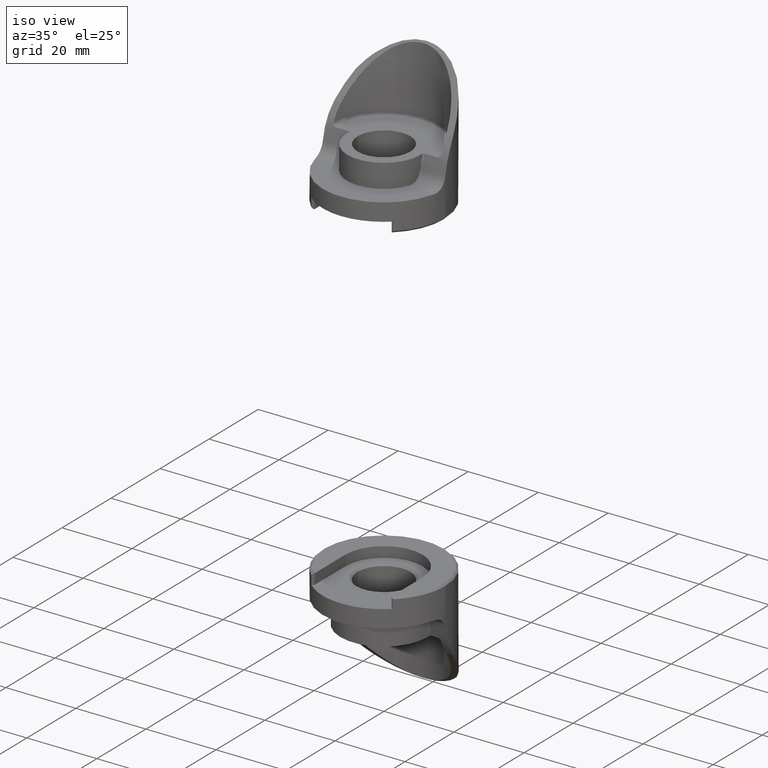
[diagram: clean part render]
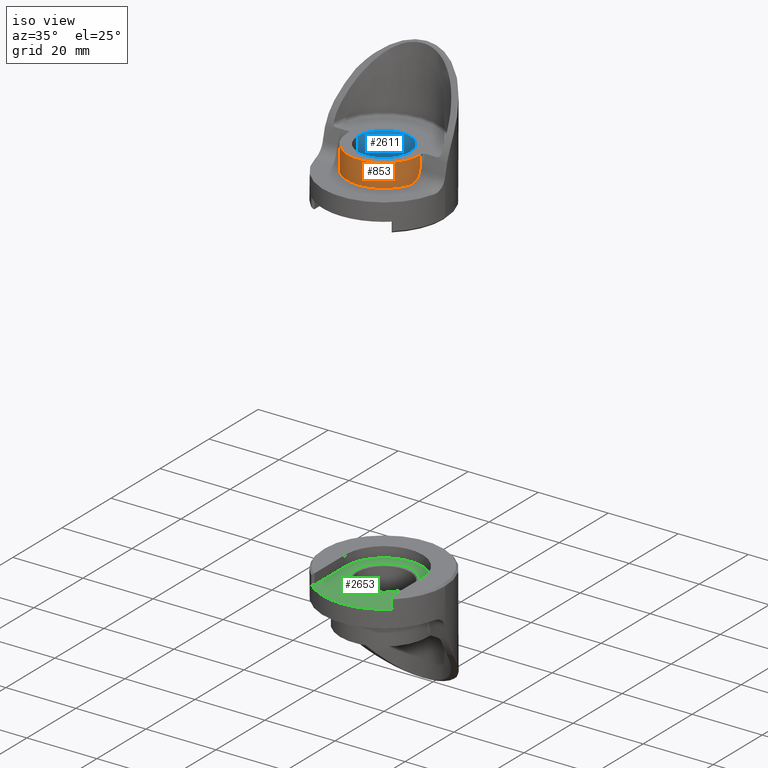
[diagram: same view with three faces highlighted in distinct colors, each labeled with its STEP entity id]
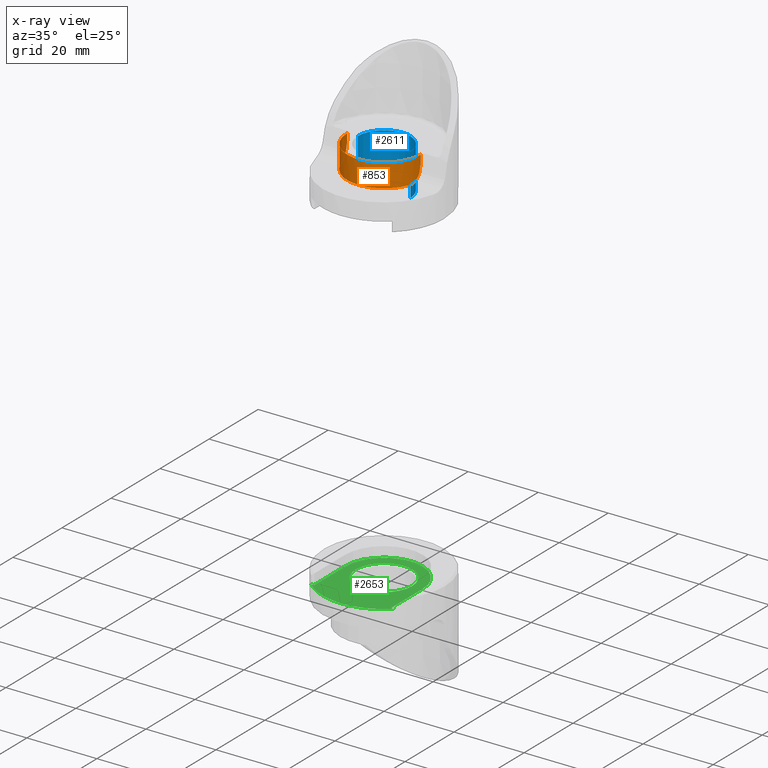
[diagram: x-ray of the same camera — body ghosted, the three highlighted faces saturated]
A machine part, iso view with three faces highlighted in distinct colors.
The next image is the same camera in x-ray (body ghosted, the three faces saturated) — at least one of them is partly hidden behind the body in this view.
Their STEP definitions:

[orange] entity #853 — the highlighted cylindrical surface (partial cylindrical patch) has radius 10.4902 mm, axis along (0, 0, 1).
#50 = DIRECTION ( 'NONE',  ( 1.000000000000000000, 0.0000000000000000000, 0.0000000000000000000 ) ) ;
#60 = DIRECTION ( 'NONE',  ( 0.0000000000000000000, 0.0000000000000000000, 1.000000000000000000 ) ) ;
#131 = CARTESIAN_POINT ( 'NONE',  ( -0.4130000000000000300, 5.057791280478569300E-017, 0.5899999999999999700 ) ) ;
#139 = VERTEX_POINT ( 'NONE', #179 ) ;
#141 = CARTESIAN_POINT ( 'NONE',  ( -0.4130000000000000300, -0.005826781412708131200, 0.4909225710475819700 ) ) ;
#154 = CARTESIAN_POINT ( 'NONE',  ( 0.3993263710594110400, -0.1056529272104528600, 0.3353939758456476200 ) ) ;
#179 = CARTESIAN_POINT ( 'NONE',  ( 0.0000000000000000000, -0.4130000000000000300, 0.3300000000000001800 ) ) ;
#197 = DIRECTION ( 'NONE',  ( 0.0000000000000000000, 0.0000000000000000000, 1.000000000000000000 ) ) ;
#213 = CARTESIAN_POINT ( 'NONE',  ( 0.3973214699686730100, -0.1129826487426935100, 0.3333771788843655800 ) ) ;
#215 = CARTESIAN_POINT ( 'NONE',  ( -0.3874878544324568100, -0.1429061323643290900, 0.3299999999999999600 ) ) ;
#224 = CARTESIAN_POINT ( 'NONE',  ( 0.4103198533190745600, -0.04723023390178410900, 0.3730357350703246100 ) ) ;
#232 = CARTESIAN_POINT ( 'NONE',  ( 0.4096665300905907300, -0.05270754598470167600, 0.3672645851385260000 ) ) ;
#311 = EDGE_CURVE ( 'NONE', #763, #139, #925, .T. ) ;
#323 = AXIS2_PLACEMENT_3D ( 'NONE', #363, #1905, #593 ) ;
#336 = CARTESIAN_POINT ( 'NONE',  ( -0.3972685364785689700, -0.1131666054838218500, 0.3333343270057818100 ) ) ;
#349 = CARTESIAN_POINT ( 'NONE',  ( 0.4113261526929359900, -0.03746829503769278500, 0.3853195972553889500 ) ) ;
#356 = CARTESIAN_POINT ( 'NONE',  ( 0.4028648309833255400, -0.09123606528337459300, 0.3408190321668037000 ) ) ;
#363 = CARTESIAN_POINT ( 'NONE',  ( 0.0000000000000000000, 0.0000000000000000000, 0.5899999999999999700 ) ) ;
#364 = CARTESIAN_POINT ( 'NONE',  ( -0.4128806757508197100, -0.01059386308442947100, 0.4673784015299072800 ) ) ;
#366 = CARTESIAN_POINT ( 'NONE',  ( 0.4128806757508213800, -0.01059386308437892200, 0.4673784015302325800 ) ) ;
#393 = EDGE_CURVE ( 'NONE', #1798, #932, #859, .T. ) ;
#401 = CARTESIAN_POINT ( 'NONE',  ( 0.4130000000000000300, 2.380073119156826500E-013, 0.5141958692772723400 ) ) ;
#442 = CARTESIAN_POINT ( 'NONE',  ( -0.4127103625916211900, -0.01551298114205573900, 0.4356854654216506000 ) ) ;
#447 = CARTESIAN_POINT ( 'NONE',  ( 0.4079689989661151600, -0.06454492360194004400, 0.3568561754940219900 ) ) ;
#517 = AXIS2_PLACEMENT_3D ( 'NONE', #1973, #663, #2190 ) ;
#518 = VERTEX_POINT ( 'NONE', #131 ) ;
#549 = ORIENTED_EDGE ( 'NONE', *, *, #1379, .T. ) ;
#561 = CARTESIAN_POINT ( 'NONE',  ( 0.4069357692341104000, -0.07083888025475620900, 0.3522580618666527600 ) ) ;
#565 = CARTESIAN_POINT ( 'NONE',  ( 0.3874878544324568100, -0.1429061323643290900, 0.3299999999999999600 ) ) ;
#571 = EDGE_CURVE ( 'NONE', #2399, #1798, #1130, .T. ) ;
#593 = DIRECTION ( 'NONE',  ( 1.000000000000000000, 0.0000000000000000000, 0.0000000000000000000 ) ) ;
#594 = CARTESIAN_POINT ( 'NONE',  ( -0.4130000000000000300, -8.294615100449116200E-016, 0.5141958692763185500 ) ) ;
#596 = CARTESIAN_POINT ( 'NONE',  ( 0.4127526842714976900, -0.01429061323643281500, 0.4435609478719307300 ) ) ;
#604 = CARTESIAN_POINT ( 'NONE',  ( 0.3927883479586157800, -0.1278543824940051300, 0.3306761581516196600 ) ) ;
#614 = CYLINDRICAL_SURFACE ( 'NONE', #1709, 0.4130000000000000300 ) ;
#616 = CARTESIAN_POINT ( 'NONE',  ( 0.4043943093681610100, -0.08414338826403917900, 0.3442518846642952900 ) ) ;
#663 = DIRECTION ( 'NONE',  ( 0.0000000000000000000, 2.532285782017398800E-016, 1.000000000000000000 ) ) ;
#715 = LINE ( 'NONE', #1352, #2520 ) ;
#726 = CARTESIAN_POINT ( 'NONE',  ( -0.4127526842714976900, -0.01429061323643281500, 0.4435609478719307300 ) ) ;
#738 = CARTESIAN_POINT ( 'NONE',  ( 0.0000000000000000000, 0.0000000000000000000, 0.3300000000000000200 ) ) ;
#753 = CIRCLE ( 'NONE', #517, 0.4130000000000000300 ) ;
#763 = VERTEX_POINT ( 'NONE', #215 ) ;
#791 = EDGE_CURVE ( 'NONE', #139, #1493, #753, .T. ) ;
#795 = CARTESIAN_POINT ( 'NONE',  ( 0.4116867158898785400, -0.03312794772482297000, 0.3918793623528836200 ) ) ;
#812 = CARTESIAN_POINT ( 'NONE',  ( 0.4130000000000033600, -0.005826781412577922000, 0.4909225710482253400 ) ) ;
#853 = ADVANCED_FACE ( 'NONE', ( #2355 ), #614, .T. ) ;
#859 = LINE ( 'NONE', #2495, #1952 ) ;
#882 = CARTESIAN_POINT ( 'NONE',  ( -0.4079600864244653000, -0.06460131094341294000, 0.3568125303097771700 ) ) ;
#925 = CIRCLE ( 'NONE', #1661, 0.4130000000000000300 ) ;
#932 = VERTEX_POINT ( 'NONE', #2766 ) ;
#949 = DIRECTION ( 'NONE',  ( 0.0000000000000000000, -1.000000000000000000, 3.307322026227921200E-016 ) ) ;
#979 = EDGE_CURVE ( 'NONE', #518, #932, #2149, .T. ) ;
#1073 = VERTEX_POINT ( 'NONE', #1496 ) ;
#1101 = ORIENTED_EDGE ( 'NONE', *, *, #571, .T. ) ;
#1106 = ORIENTED_EDGE ( 'NONE', *, *, #1778, .T. ) ;
#1130 = B_SPLINE_CURVE_WITH_KNOTS ( 'NONE', 3,
 ( #596, #366, #812, #2124 ),
 .UNSPECIFIED., .F., .F.,
 ( 4, 4 ),
 ( 2.168404344971008900E-019, 0.001828135297121841300 ),
 .UNSPECIFIED. ) ;
#1190 = CARTESIAN_POINT ( 'NONE',  ( 0.4127526842714976900, -0.01429061323643281500, 0.4435609478719307300 ) ) ;
#1202 = CARTESIAN_POINT ( 'NONE',  ( -0.4043612023738524200, -0.08430205499889152600, 0.3441698574180915300 ) ) ;
#1227 = CARTESIAN_POINT ( 'NONE',  ( -0.4130000000000000300, -8.294615100449116200E-016, 0.5141958692763185500 ) ) ;
#1261 = CARTESIAN_POINT ( 'NONE',  ( -0.4103052528366296100, -0.04735871103825134400, 0.3728910993368749800 ) ) ;
#1328 = CARTESIAN_POINT ( 'NONE',  ( -0.3902462773786566400, -0.1354267095337171300, 0.3300000000000001300 ) ) ;
#1330 = CARTESIAN_POINT ( 'NONE',  ( 0.4124958568678968600, -0.02176740474719328400, 0.4128293966335959700 ) ) ;
#1352 = CARTESIAN_POINT ( 'NONE',  ( -0.4130000000000000300, 5.057791280478569300E-017, -0.8531404025201765300 ) ) ;
#1379 = EDGE_CURVE ( 'NONE', #1073, #763, #1813, .T. ) ;
#1441 = CARTESIAN_POINT ( 'NONE',  ( -0.3874878544324568100, -0.1429061323643290900, 0.3299999999999999600 ) ) ;
#1493 = VERTEX_POINT ( 'NONE', #565 ) ;
#1496 = CARTESIAN_POINT ( 'NONE',  ( -0.4127526842714976900, -0.01429061323643281500, 0.4435609478719307300 ) ) ;
#1577 = CARTESIAN_POINT ( 'NONE',  ( -0.4123963835295955100, -0.02246335987963395800, 0.4129578286714221100 ) ) ;
#1582 = CARTESIAN_POINT ( 'NONE',  ( 0.0000000000000000000, 0.0000000000000000000, -0.8531404025201765300 ) ) ;
#1601 = CARTESIAN_POINT ( 'NONE',  ( -0.4126402856948507800, -0.01741764355598051500, 0.4279093898747667300 ) ) ;
#1608 = CARTESIAN_POINT ( 'NONE',  ( -0.3993017184325575700, -0.1057489569638120500, 0.3353617641057266600 ) ) ;
#1661 = AXIS2_PLACEMENT_3D ( 'NONE', #738, #2259, #949 ) ;
#1709 = AXIS2_PLACEMENT_3D ( 'NONE', #1582, #60, #50 ) ;
#1732 = ORIENTED_EDGE ( 'NONE', *, *, #979, .F. ) ;
#1734 = CARTESIAN_POINT ( 'NONE',  ( -0.4127526842714976900, -0.01429061323643281500, 0.4435609478719307300 ) ) ;
#1764 = EDGE_CURVE ( 'NONE', #1802, #518, #715, .T. ) ;
#1778 = EDGE_CURVE ( 'NONE', #1493, #2399, #2588, .T. ) ;
#1798 = VERTEX_POINT ( 'NONE', #401 ) ;
#1802 = VERTEX_POINT ( 'NONE', #594 ) ;
#1804 = CARTESIAN_POINT ( 'NONE',  ( -0.4028618322218158200, -0.09125266232285636500, 0.3408088928865208900 ) ) ;
#1813 = B_SPLINE_CURVE_WITH_KNOTS ( 'NONE', 3,
 ( #726, #442, #1601, #1577, #2310, #2568, #2664, #1261, #2525, #882, #2088, #1202, #1804, #1608, #336, #2785, #1328, #1441 ),
 .UNSPECIFIED., .F., .F.,
 ( 4, 2, 2, 2, 2, 2, 2, 2, 4 ),
 ( 0.0000000000000000000, 0.0006067016932587575500, 0.001213403386517515100, 0.001820105079776272600, 0.002426806773035030200, 0.003033508466293787700, 0.003640210159552545300, 0.004246911852811303300, 0.004853613546070060400 ),
 .UNSPECIFIED. ) ;
#1822 = ORIENTED_EDGE ( 'NONE', *, *, #791, .T. ) ;
#1833 = EDGE_CURVE ( 'NONE', #1802, #1073, #2378, .T. ) ;
#1905 = DIRECTION ( 'NONE',  ( 0.0000000000000000000, 0.0000000000000000000, 1.000000000000000000 ) ) ;
#1952 = VECTOR ( 'NONE', #2277, 39.37007874015748100 ) ;
#1973 = CARTESIAN_POINT ( 'NONE',  ( 0.0000000000000000000, 0.0000000000000000000, 0.3300000000000000200 ) ) ;
#2088 = CARTESIAN_POINT ( 'NONE',  ( -0.4069066442545908300, -0.07100564290062837100, 0.3521445827566134800 ) ) ;
#2111 = CARTESIAN_POINT ( 'NONE',  ( 0.4127526842714976900, -0.01429061323643281500, 0.4435609478719307300 ) ) ;
#2124 = CARTESIAN_POINT ( 'NONE',  ( 0.4130000000000000300, 2.380073119156826500E-013, 0.5141958692772723400 ) ) ;
#2149 = CIRCLE ( 'NONE', #323, 0.4130000000000000300 ) ;
#2187 = CARTESIAN_POINT ( 'NONE',  ( 0.3874878544324568100, -0.1429061323643290900, 0.3299999999999999600 ) ) ;
#2190 = DIRECTION ( 'NONE',  ( 0.0000000000000000000, -1.000000000000000000, 3.307322026227921200E-016 ) ) ;
#2226 = ORIENTED_EDGE ( 'NONE', *, *, #311, .T. ) ;
#2231 = EDGE_LOOP ( 'NONE', ( #2632, #2305, #549, #2226, #1822, #1106, #1101, #2647, #1732 ) ) ;
#2259 = DIRECTION ( 'NONE',  ( 0.0000000000000000000, 2.532285782017398800E-016, 1.000000000000000000 ) ) ;
#2277 = DIRECTION ( 'NONE',  ( 0.0000000000000000000, 0.0000000000000000000, 1.000000000000000000 ) ) ;
#2305 = ORIENTED_EDGE ( 'NONE', *, *, #1833, .T. ) ;
#2310 = CARTESIAN_POINT ( 'NONE',  ( -0.4122228984861232000, -0.02560367287079375700, 0.4057472936210317900 ) ) ;
#2355 = FACE_OUTER_BOUND ( 'NONE', #2231, .T. ) ;
#2378 = B_SPLINE_CURVE_WITH_KNOTS ( 'NONE', 3,
 ( #1227, #141, #364, #1734 ),
 .UNSPECIFIED., .F., .F.,
 ( 4, 4 ),
 ( 0.002010737544515189300, 0.003838872841612058400 ),
 .UNSPECIFIED. ) ;
#2399 = VERTEX_POINT ( 'NONE', #1190 ) ;
#2413 = CARTESIAN_POINT ( 'NONE',  ( 0.3902465674096118900, -0.1354259231190917700, 0.3300000000000001300 ) ) ;
#2495 = CARTESIAN_POINT ( 'NONE',  ( 0.4130000000000000300, 0.0000000000000000000, -0.8531404025201765300 ) ) ;
#2515 = CARTESIAN_POINT ( 'NONE',  ( 0.4126680604176046800, -0.01673478566415793200, 0.4278136127435611100 ) ) ;
#2520 = VECTOR ( 'NONE', #197, 39.37007874015748100 ) ;
#2525 = CARTESIAN_POINT ( 'NONE',  ( -0.4096594717564669400, -0.05276247427175117400, 0.3672104078972399100 ) ) ;
#2568 = CARTESIAN_POINT ( 'NONE',  ( -0.4116856766383700200, -0.03313864438360117300, 0.3918673193953723900 ) ) ;
#2588 = B_SPLINE_CURVE_WITH_KNOTS ( 'NONE', 3,
 ( #2187, #2413, #604, #213, #154, #356, #616, #561, #447, #232, #224, #349, #795, #1330, #2515, #2111 ),
 .UNSPECIFIED., .F., .F.,
 ( 4, 2, 2, 2, 2, 2, 2, 4 ),
 ( 0.0000000000000000000, 0.0006067863832255573000, 0.001213572766451114600, 0.001820359149676671800, 0.002427145532902229200, 0.003033931916127786600, 0.003640718299353343600, 0.004854291065804454100 ),
 .UNSPECIFIED. ) ;
#2632 = ORIENTED_EDGE ( 'NONE', *, *, #1764, .F. ) ;
#2647 = ORIENTED_EDGE ( 'NONE', *, *, #393, .T. ) ;
#2664 = CARTESIAN_POINT ( 'NONE',  ( -0.4113177736175240300, -0.03756244298309687600, 0.3851844774266646700 ) ) ;
#2766 = CARTESIAN_POINT ( 'NONE',  ( 0.4130000000000000300, 0.0000000000000000000, 0.5899999999999999700 ) ) ;
#2785 = CARTESIAN_POINT ( 'NONE',  ( -0.3927468485706759300, -0.1279800125424183900, 0.3306629819577388000 ) ) ;

[blue] entity #2611 — the highlighted cylindrical surface (edge-blend (fillet) strip) has radius 7.5 mm, axis along (0, 0, 1).
#4 = EDGE_CURVE ( 'NONE', #440, #1791, #897, .T. ) ;
#289 = EDGE_CURVE ( 'NONE', #419, #772, #2083, .T. ) ;
#308 = VECTOR ( 'NONE', #1504, 39.37007874015748100 ) ;
#419 = VERTEX_POINT ( 'NONE', #1860 ) ;
#440 = VERTEX_POINT ( 'NONE', #986 ) ;
#469 = AXIS2_PLACEMENT_3D ( 'NONE', #2340, #1032, #2560 ) ;
#528 = CYLINDRICAL_SURFACE ( 'NONE', #1578, 0.2952755905511810200 ) ;
#590 = DIRECTION ( 'NONE',  ( -0.0000000000000000000, -0.0000000000000000000, 1.000000000000000000 ) ) ;
#621 = ORIENTED_EDGE ( 'NONE', *, *, #1081, .T. ) ;
#772 = VERTEX_POINT ( 'NONE', #2402 ) ;
#897 = LINE ( 'NONE', #1045, #308 ) ;
#986 = CARTESIAN_POINT ( 'NONE',  ( -0.2952755905511810200, 3.616083068348482600E-017, 0.1180000000000000100 ) ) ;
#988 = EDGE_CURVE ( 'NONE', #440, #419, #1583, .T. ) ;
#1023 = ORIENTED_EDGE ( 'NONE', *, *, #4, .F. ) ;
#1032 = DIRECTION ( 'NONE',  ( 0.0000000000000000000, 0.0000000000000000000, -1.000000000000000000 ) ) ;
#1045 = CARTESIAN_POINT ( 'NONE',  ( -0.2952755905511810200, 3.616083068348482600E-017, 0.5899999999999999700 ) ) ;
#1068 = DIRECTION ( 'NONE',  ( -0.0000000000000000000, -0.0000000000000000000, 1.000000000000000000 ) ) ;
#1081 = EDGE_CURVE ( 'NONE', #772, #1791, #2081, .T. ) ;
#1212 = AXIS2_PLACEMENT_3D ( 'NONE', #2372, #1068, #2590 ) ;
#1254 = EDGE_LOOP ( 'NONE', ( #1023, #1803, #1796, #621 ) ) ;
#1504 = DIRECTION ( 'NONE',  ( -0.0000000000000000000, -0.0000000000000000000, 1.000000000000000000 ) ) ;
#1509 = VECTOR ( 'NONE', #2690, 39.37007874015748100 ) ;
#1578 = AXIS2_PLACEMENT_3D ( 'NONE', #2348, #590, #1674 ) ;
#1583 = CIRCLE ( 'NONE', #469, 0.2952755905511810200 ) ;
#1674 = DIRECTION ( 'NONE',  ( 1.000000000000000000, 0.0000000000000000000, 0.0000000000000000000 ) ) ;
#1694 = CARTESIAN_POINT ( 'NONE',  ( -0.2952755905511810800, 3.616083068348483800E-017, 0.5899999999999999700 ) ) ;
#1791 = VERTEX_POINT ( 'NONE', #1694 ) ;
#1796 = ORIENTED_EDGE ( 'NONE', *, *, #289, .T. ) ;
#1803 = ORIENTED_EDGE ( 'NONE', *, *, #988, .T. ) ;
#1860 = CARTESIAN_POINT ( 'NONE',  ( 0.2952755905511810200, 0.0000000000000000000, 0.1180000000000000100 ) ) ;
#2038 = FACE_OUTER_BOUND ( 'NONE', #1254, .T. ) ;
#2081 = CIRCLE ( 'NONE', #1212, 0.2952755905511810200 ) ;
#2083 = LINE ( 'NONE', #2683, #1509 ) ;
#2340 = CARTESIAN_POINT ( 'NONE',  ( 0.0000000000000000000, 0.0000000000000000000, 0.1180000000000000100 ) ) ;
#2348 = CARTESIAN_POINT ( 'NONE',  ( 0.0000000000000000000, 0.0000000000000000000, 0.5899999999999999700 ) ) ;
#2372 = CARTESIAN_POINT ( 'NONE',  ( 0.0000000000000000000, 0.0000000000000000000, 0.5899999999999999700 ) ) ;
#2402 = CARTESIAN_POINT ( 'NONE',  ( 0.2952755905511810200, 0.0000000000000000000, 0.5899999999999999700 ) ) ;
#2560 = DIRECTION ( 'NONE',  ( -1.000000000000000000, 0.0000000000000000000, 0.0000000000000000000 ) ) ;
#2590 = DIRECTION ( 'NONE',  ( 1.000000000000000000, 0.0000000000000000000, 0.0000000000000000000 ) ) ;
#2611 = ADVANCED_FACE ( 'NONE', ( #2038 ), #528, .F. ) ;
#2683 = CARTESIAN_POINT ( 'NONE',  ( 0.2952755905511810200, 0.0000000000000000000, 0.5899999999999999700 ) ) ;
#2690 = DIRECTION ( 'NONE',  ( -0.0000000000000000000, -0.0000000000000000000, 1.000000000000000000 ) ) ;

[green] entity #2653 — the highlighted planar face has unit normal (-0, 0, 1).
#78 = AXIS2_PLACEMENT_3D ( 'NONE', #1651, #905, #741 ) ;
#81 = DIRECTION ( 'NONE',  ( 0.0000000000000000000, 0.0000000000000000000, -1.000000000000000000 ) ) ;
#138 = DIRECTION ( 'NONE',  ( -1.000000000000000000, 0.0000000000000000000, -0.0000000000000000000 ) ) ;
#177 = DIRECTION ( 'NONE',  ( -0.0000000000000000000, -0.0000000000000000000, 1.000000000000000000 ) ) ;
#209 = CARTESIAN_POINT ( 'NONE',  ( -0.4540000000000000700, -0.4893263226109952900, 0.1179999999999999400 ) ) ;
#253 = VERTEX_POINT ( 'NONE', #1960 ) ;
#267 = CARTESIAN_POINT ( 'NONE',  ( -0.4676029962546817100, -0.5039877854607630600, 0.1179999999999999400 ) ) ;
#305 = CIRCLE ( 'NONE', #2192, 0.01999999999999999000 ) ;
#309 = CARTESIAN_POINT ( 'NONE',  ( 0.0000000000000000000, 0.0000000000000000000, 0.1179999999999999400 ) ) ;
#327 = CARTESIAN_POINT ( 'NONE',  ( -0.3169999999999996700, 0.0000000000000000000, 0.1179999999999999900 ) ) ;
#330 = CIRCLE ( 'NONE', #1545, 0.3169999999999996700 ) ;
#368 = DIRECTION ( 'NONE',  ( -0.0000000000000000000, -0.0000000000000000000, 1.000000000000000000 ) ) ;
#370 = EDGE_CURVE ( 'NONE', #2718, #1209, #2017, .T. ) ;
#412 = DIRECTION ( 'NONE',  ( -0.0000000000000000000, -0.0000000000000000000, 1.000000000000000000 ) ) ;
#427 = CARTESIAN_POINT ( 'NONE',  ( 0.0000000000000000000, 0.0000000000000000000, 0.1179999999999999900 ) ) ;
#463 = FACE_BOUND ( 'NONE', #2514, .T. ) ;
#499 = VECTOR ( 'NONE', #1697, 39.37007874015748100 ) ;
#520 = DIRECTION ( 'NONE',  ( -1.000000000000000000, 0.0000000000000000000, 0.0000000000000000000 ) ) ;
#538 = DIRECTION ( 'NONE',  ( 1.280878448343328500E-016, 1.000000000000000000, 0.0000000000000000000 ) ) ;
#555 = DIRECTION ( 'NONE',  ( -1.000000000000000000, 0.0000000000000000000, 0.0000000000000000000 ) ) ;
#586 = EDGE_CURVE ( 'NONE', #1663, #253, #1753, .T. ) ;
#628 = EDGE_LOOP ( 'NONE', ( #1383, #865, #2373, #1488, #1986, #1112 ) ) ;
#652 = DIRECTION ( 'NONE',  ( -1.000000000000000000, 0.0000000000000000000, 0.0000000000000000000 ) ) ;
#677 = EDGE_CURVE ( 'NONE', #2132, #2718, #305, .T. ) ;
#741 = DIRECTION ( 'NONE',  ( -1.000000000000000000, 0.0000000000000000000, 0.0000000000000000000 ) ) ;
#813 = CARTESIAN_POINT ( 'NONE',  ( -0.4340000000000000500, 2.934941704267998900E-017, 0.1179999999999999900 ) ) ;
#865 = ORIENTED_EDGE ( 'NONE', *, *, #2252, .T. ) ;
#905 = DIRECTION ( 'NONE',  ( -0.0000000000000000000, -0.0000000000000000000, 1.000000000000000000 ) ) ;
#959 = VERTEX_POINT ( 'NONE', #2101 ) ;
#1055 = FACE_OUTER_BOUND ( 'NONE', #628, .T. ) ;
#1112 = ORIENTED_EDGE ( 'NONE', *, *, #677, .T. ) ;
#1115 = EDGE_CURVE ( 'NONE', #2236, #959, #1236, .T. ) ;
#1121 = VECTOR ( 'NONE', #538, 39.37007874015748100 ) ;
#1209 = VERTEX_POINT ( 'NONE', #267 ) ;
#1236 = CIRCLE ( 'NONE', #2669, 0.3169999999999996700 ) ;
#1383 = ORIENTED_EDGE ( 'NONE', *, *, #370, .T. ) ;
#1408 = ORIENTED_EDGE ( 'NONE', *, *, #1115, .T. ) ;
#1464 = CIRCLE ( 'NONE', #78, 0.4340000000000000500 ) ;
#1467 = EDGE_CURVE ( 'NONE', #1525, #1663, #1464, .T. ) ;
#1485 = PLANE ( 'NONE',  #2298 ) ;
#1488 = ORIENTED_EDGE ( 'NONE', *, *, #1467, .F. ) ;
#1525 = VERTEX_POINT ( 'NONE', #1570 ) ;
#1545 = AXIS2_PLACEMENT_3D ( 'NONE', #2307, #368, #555 ) ;
#1570 = CARTESIAN_POINT ( 'NONE',  ( 0.4340000000000000000, 5.991603803461642800E-023, 0.1179999999999999900 ) ) ;
#1639 = LINE ( 'NONE', #2358, #1121 ) ;
#1651 = CARTESIAN_POINT ( 'NONE',  ( 0.0000000000000000000, 0.0000000000000000000, 0.1179999999999999900 ) ) ;
#1663 = VERTEX_POINT ( 'NONE', #813 ) ;
#1681 = EDGE_CURVE ( 'NONE', #959, #2236, #330, .T. ) ;
#1686 = CARTESIAN_POINT ( 'NONE',  ( -0.4340000000000000500, -0.5331981339052115400, 0.1179999999999999900 ) ) ;
#1697 = DIRECTION ( 'NONE',  ( -0.0000000000000000000, -1.000000000000000000, -0.0000000000000000000 ) ) ;
#1741 = CARTESIAN_POINT ( 'NONE',  ( 0.4539999999999997900, -0.4893263226109955100, 0.1179999999999999400 ) ) ;
#1753 = LINE ( 'NONE', #1686, #499 ) ;
#1825 = ORIENTED_EDGE ( 'NONE', *, *, #1681, .T. ) ;
#1839 = DIRECTION ( 'NONE',  ( 0.0000000000000000000, 0.0000000000000000000, -1.000000000000000000 ) ) ;
#1949 = DIRECTION ( 'NONE',  ( -1.000000000000000000, 0.0000000000000000000, 0.0000000000000000000 ) ) ;
#1960 = CARTESIAN_POINT ( 'NONE',  ( -0.4340000000000000500, -0.4893263226109952900, 0.1179999999999999900 ) ) ;
#1965 = DIRECTION ( 'NONE',  ( -0.0000000000000000000, -0.0000000000000000000, 1.000000000000000000 ) ) ;
#1986 = ORIENTED_EDGE ( 'NONE', *, *, #2638, .F. ) ;
#2017 = CIRCLE ( 'NONE', #2524, 0.6875000000000000000 ) ;
#2063 = CARTESIAN_POINT ( 'NONE',  ( 0.4676029962546814400, -0.5039877854607631700, 0.1179999999999999400 ) ) ;
#2101 = CARTESIAN_POINT ( 'NONE',  ( 0.3169999999999996700, 3.882130353297105400E-017, 0.1179999999999999900 ) ) ;
#2132 = VERTEX_POINT ( 'NONE', #2145 ) ;
#2145 = CARTESIAN_POINT ( 'NONE',  ( 0.4339999999999999400, -0.4893263226109955100, 0.1179999999999999900 ) ) ;
#2192 = AXIS2_PLACEMENT_3D ( 'NONE', #1741, #412, #1949 ) ;
#2236 = VERTEX_POINT ( 'NONE', #327 ) ;
#2252 = EDGE_CURVE ( 'NONE', #1209, #253, #2729, .T. ) ;
#2298 = AXIS2_PLACEMENT_3D ( 'NONE', #2339, #81, #138 ) ;
#2307 = CARTESIAN_POINT ( 'NONE',  ( 0.0000000000000000000, 0.0000000000000000000, 0.1179999999999999900 ) ) ;
#2339 = CARTESIAN_POINT ( 'NONE',  ( 0.0000000000000000000, 0.0000000000000000000, 0.1179999999999999900 ) ) ;
#2358 = CARTESIAN_POINT ( 'NONE',  ( 0.4340000000000000000, 0.0000000000000000000, 0.1179999999999999900 ) ) ;
#2373 = ORIENTED_EDGE ( 'NONE', *, *, #586, .F. ) ;
#2410 = AXIS2_PLACEMENT_3D ( 'NONE', #209, #177, #2574 ) ;
#2514 = EDGE_LOOP ( 'NONE', ( #1408, #1825 ) ) ;
#2524 = AXIS2_PLACEMENT_3D ( 'NONE', #309, #1839, #520 ) ;
#2574 = DIRECTION ( 'NONE',  ( -1.000000000000000000, 0.0000000000000000000, 0.0000000000000000000 ) ) ;
#2638 = EDGE_CURVE ( 'NONE', #2132, #1525, #1639, .T. ) ;
#2653 = ADVANCED_FACE ( 'NONE', ( #463, #1055 ), #1485, .T. ) ;
#2669 = AXIS2_PLACEMENT_3D ( 'NONE', #427, #1965, #652 ) ;
#2718 = VERTEX_POINT ( 'NONE', #2063 ) ;
#2729 = CIRCLE ( 'NONE', #2410, 0.01999999999999999000 ) ;